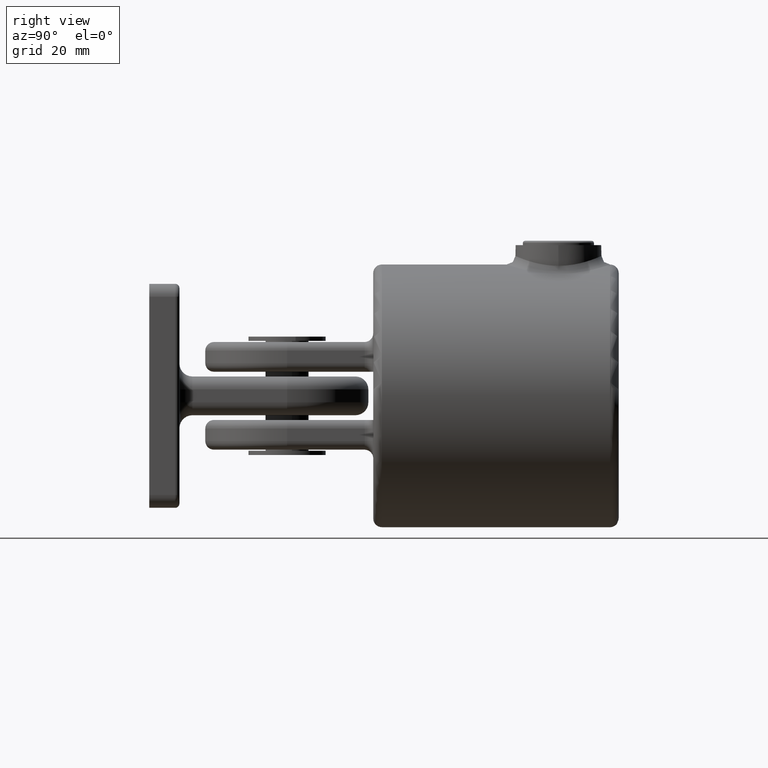
[diagram: clean part render]
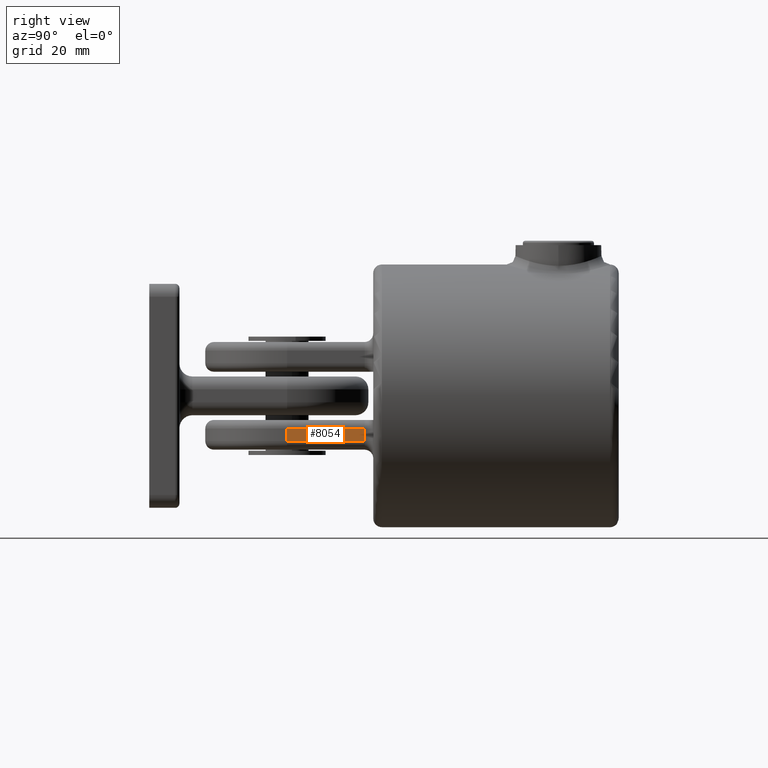
[diagram: same view with one face highlighted and labeled with its STEP entity id]
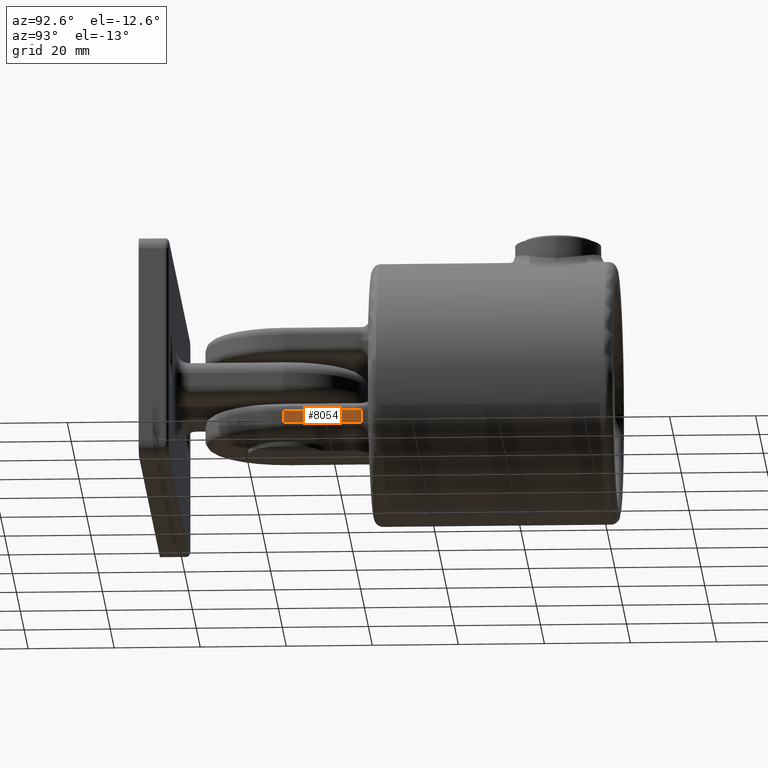
[diagram: same view with one face highlighted and labeled with its STEP entity id]
A machine part, right view. The second image highlights one B-rep face of the part: STEP entity #8054.
A second angle (auxiliary view) of the same face is appended — the face is thin or edge-on in the first view.
In plain terms, the highlighted planar face has unit normal (-1, 0, 0).
Its self-contained STEP definition (entity closure, byte-faithful):
#637 = VECTOR ( 'NONE', #14392, 1000.000000000000000 ) ;
#798 = LINE ( 'NONE', #14599, #4267 ) ;
#1238 = VECTOR ( 'NONE', #16464, 1000.000000000000000 ) ;
#1350 = AXIS2_PLACEMENT_3D ( 'NONE', #5030, #14335, #13066 ) ;
#2795 = ORIENTED_EDGE ( 'NONE', *, *, #6504, .T. ) ;
#2892 = CARTESIAN_POINT ( 'NONE',  ( -19.00000000000000000, 59.00000000000000711, -7.599999999999998757 ) ) ;
#3433 = CARTESIAN_POINT ( 'NONE',  ( -19.00000000000000000, 77.00000000000000000, -10.49999999999999822 ) ) ;
#4267 = VECTOR ( 'NONE', #17179, 1000.000000000000000 ) ;
#4912 = CARTESIAN_POINT ( 'NONE',  ( -19.00000000000000000, 77.00000000000000000, -7.599999999999998757 ) ) ;
#5008 = EDGE_CURVE ( 'NONE', #15352, #8881, #11598, .T. ) ;
#5030 = CARTESIAN_POINT ( 'NONE',  ( -19.00000000000000000, 96.00000000000000000, 12.50000000000000000 ) ) ;
#5139 = LINE ( 'NONE', #13075, #637 ) ;
#6504 = EDGE_CURVE ( 'NONE', #10373, #15352, #5139, .T. ) ;
#6518 = VERTEX_POINT ( 'NONE', #4912 ) ;
#7592 = PLANE ( 'NONE',  #1350 ) ;
#8054 = ADVANCED_FACE ( 'NONE', ( #16620 ), #7592, .F. ) ;
#8462 = DIRECTION ( 'NONE',  ( -0.000000000000000000, 0.000000000000000000, 1.000000000000000000 ) ) ;
#8881 = VERTEX_POINT ( 'NONE', #2892 ) ;
#9035 = EDGE_LOOP ( 'NONE', ( #2795, #15234, #15311, #13312 ) ) ;
#9132 = VECTOR ( 'NONE', #8462, 1000.000000000000000 ) ;
#10373 = VERTEX_POINT ( 'NONE', #3433 ) ;
#11045 = CARTESIAN_POINT ( 'NONE',  ( -19.00000000000000000, 96.00000000000000000, -7.599999999999998757 ) ) ;
#11119 = CARTESIAN_POINT ( 'NONE',  ( -19.00000000000000000, 59.00000000000000711, 12.50000000000000000 ) ) ;
#11312 = EDGE_CURVE ( 'NONE', #6518, #10373, #798, .T. ) ;
#11529 = EDGE_CURVE ( 'NONE', #8881, #6518, #15923, .T. ) ;
#11598 = LINE ( 'NONE', #11119, #9132 ) ;
#13066 = DIRECTION ( 'NONE',  ( 0.000000000000000000, 0.000000000000000000, -1.000000000000000000 ) ) ;
#13075 = CARTESIAN_POINT ( 'NONE',  ( -19.00000000000000000, 96.00000000000000000, -10.49999999999999822 ) ) ;
#13312 = ORIENTED_EDGE ( 'NONE', *, *, #11312, .T. ) ;
#14335 = DIRECTION ( 'NONE',  ( 1.000000000000000000, -0.000000000000000000, 0.000000000000000000 ) ) ;
#14392 = DIRECTION ( 'NONE',  ( -0.000000000000000000, -1.000000000000000000, 0.000000000000000000 ) ) ;
#14599 = CARTESIAN_POINT ( 'NONE',  ( -19.00000000000000000, 77.00000000000000000, 12.50000000000000000 ) ) ;
#15234 = ORIENTED_EDGE ( 'NONE', *, *, #5008, .T. ) ;
#15311 = ORIENTED_EDGE ( 'NONE', *, *, #11529, .T. ) ;
#15352 = VERTEX_POINT ( 'NONE', #15428 ) ;
#15428 = CARTESIAN_POINT ( 'NONE',  ( -19.00000000000000000, 59.00000000000000711, -10.49999999999999822 ) ) ;
#15923 = LINE ( 'NONE', #11045, #1238 ) ;
#16464 = DIRECTION ( 'NONE',  ( 0.000000000000000000, 1.000000000000000000, 0.000000000000000000 ) ) ;
#16620 = FACE_OUTER_BOUND ( 'NONE', #9035, .T. ) ;
#17179 = DIRECTION ( 'NONE',  ( -0.000000000000000000, -0.000000000000000000, -1.000000000000000000 ) ) ;